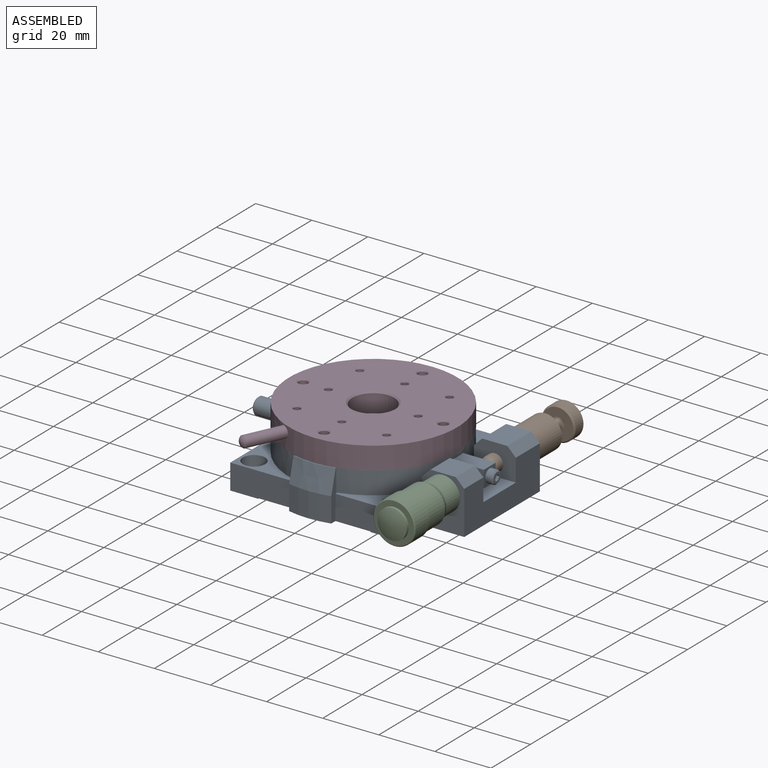
[diagram: assembled view]
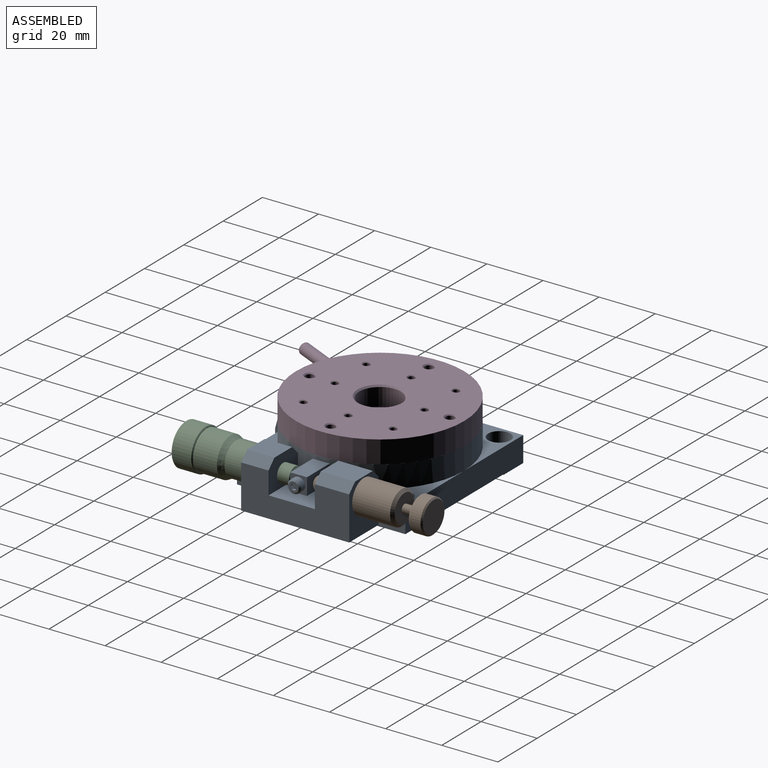
[diagram: assembled view, second angle]
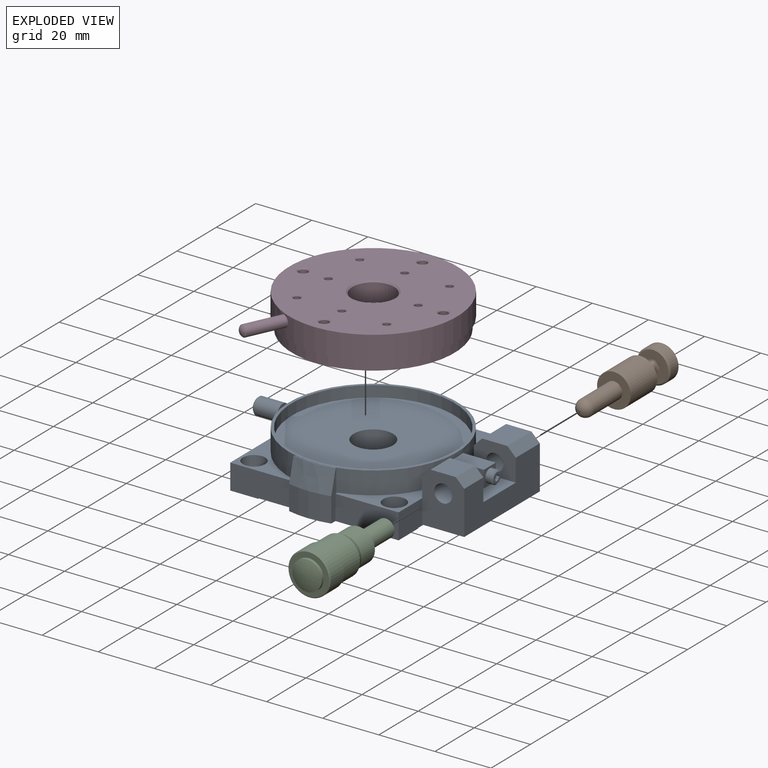
[diagram: exploded view]
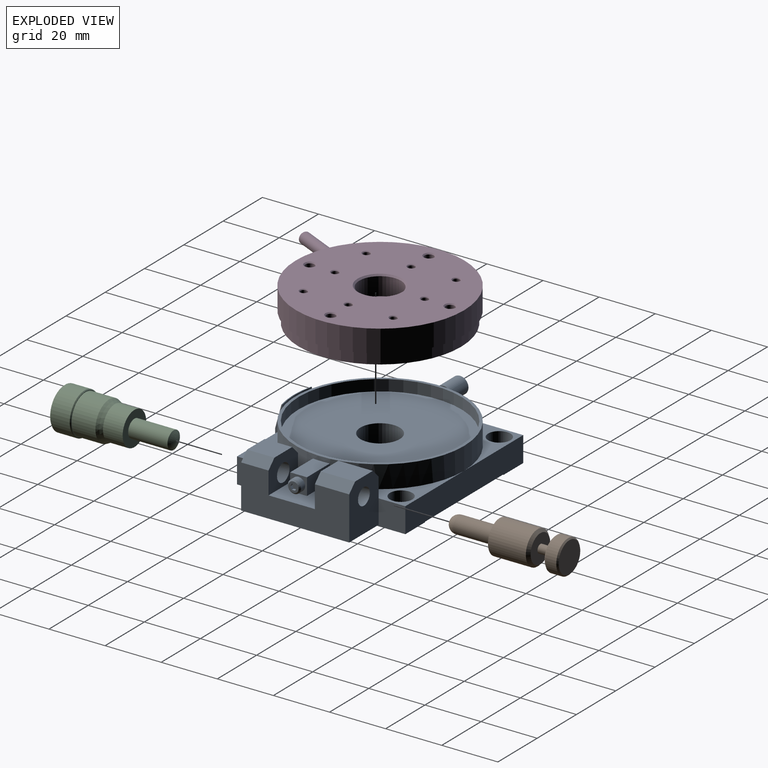
[diagram: exploded view, second angle]
ASSEMBLY  parts=4 mates=3
PART A: 93 faces, bbox 86.2x63x19 mm
  f0: cone r=33mm half-angle=15deg, axis (0,0,-1), area 128.7mm2, adj f1,f4,f91,f92
  f1: plane 15x1.24mm, normal (0,0,1), area 4.6mm2, adj f0,f2,f91,f92
  f2: cylinder r=30.5mm len=15mm, axis (0,0,1), area 121.2mm2, adj f1,f3,f91,f92
  f3: plane 15x1.45mm, normal (0,0,1), area 7.6mm2, adj f2,f63,f91,f92
  f4: cylinder r=33mm len=15mm, axis (0,0,1), area 133.2mm2, adj f0,f44,f91,f92
  f5: cylinder r=1.5mm len=3mm, axis (-1,0,0), area 11.7mm2, adj f6,f63
  f6: plane 4x4mm, normal (1,0,0), area 5.5mm2, adj f5,f7
  f7: cylinder r=2mm len=4mm, axis (-1,0,0), area 12.6mm2, adj f6,f8
  f8: plane 6x6mm, normal (1,0,0), area 15.7mm2, adj f7,f9
  f9: cylinder r=3mm len=8.5mm, axis (-1,0,0), area 160.2mm2, adj f8,f10
  f10: cone r=2.5mm half-angle=45deg, axis (1,0,0), area 12.2mm2, adj f9,f11
  f11: plane 5x5mm, normal (-1,0,0), area 19.6mm2, adj f10
  f12: plane 11.65x6mm, normal (0,0,1), area 69.3mm2, adj f14,f15,f16,f19,f63,f83,f84
  f13: plane 11.65x6mm, normal (0,0,-1), area 69.3mm2, adj f14,f15,f16,f63,f81,f82,f89
  f14: plane 11.65x6mm, normal (0,1,0), area 69.9mm2, adj f12,f13,f15,f63
  f15: plane 6x6mm, normal (1,0,0), area 18.7mm2, adj f12,f13,f14,f16,f71
  f16: plane 11.65x6mm, normal (0,-1,0), area 69.9mm2, adj f12,f13,f15,f63
  f17: cylinder r=3.17mm len=9.75mm, axis (0,-1,0), area 194.5mm2, adj f22,f23
  f18: cylinder r=3mm len=12.25mm, axis (0,1,0), area 230.9mm2, adj f20,f24
  f19: plane 2.19x0.5mm, normal (1,0,0), area 1.1mm2, adj f12,f83,f84,f85,f86
  f20: plane 15x11mm, normal (0,-1,0), area 127.7mm2, adj f18,f21,f27,f70,f87,f88,f89,f90
  f21: plane 16.5x15mm, normal (0,0,1), area 247.5mm2, adj f20,f22,f27,f89
  f22: plane 15x11mm, normal (0,1,0), area 124.3mm2, adj f17,f21,f25,f26,f27,f29,f30,f89
  f23: plane 18.5x15mm, normal (0,-1,0), area 236.8mm2, adj f17,f25,f26,f27,f28,f29,f30,f67
  f24: plane 18.5x15mm, normal (0,1,0), area 240.2mm2, adj f18,f27,f28,f67,f70,f87,f88,f90
  f25: plane 9.75x9mm, normal (0,0,1), area 87.8mm2, adj f22,f23,f26,f30
  f26: plane 9.75x3mm, normal (0.71,0,0.71), area 41.4mm2, adj f22,f23,f25,f27
  f27: plane 38.5x15.5mm, normal (1,0,0), area 464.7mm2, adj f20,f21,f22,f23,f24,f26,f28,f90
  f28: plane 38.5x15mm, normal (0,0,-1), area 577.5mm2, adj f23,f24,f27,f67
  f29: plane 9.75x7mm, normal (-1,0,0), area 68.2mm2, adj f22,f23,f30,f54
  f30: plane 9.75x3mm, normal (-0.71,0,0.71), area 41.4mm2, adj f22,f23,f25,f29
  f31: cylinder r=2.25mm len=4.5mm, axis (0,0,1), area 63.6mm2, adj f32,f68
  f32: plane 8x8mm, normal (0,0,1), area 34.4mm2, adj f31,f33
  f33: cylinder r=4mm len=8mm, axis (0,0,1), area 113.1mm2, adj f32,f58
  f34: cylinder r=2.25mm len=4.5mm, axis (0,0,1), area 63.6mm2, adj f35,f66
  f35: plane 8x8mm, normal (0,0,1), area 34.4mm2, adj f34,f36
  f36: cylinder r=4mm len=8mm, axis (0,0,1), area 113.1mm2, adj f35,f54
  f37: cylinder r=2.25mm len=4.5mm, axis (0,0,1), area 63.6mm2, adj f38,f69
  f38: plane 8x8mm, normal (0,0,1), area 34.4mm2, adj f37,f39
  f39: cylinder r=4mm len=8mm, axis (0,0,1), area 113.1mm2, adj f38,f56
  f40: cylinder r=2.25mm len=4.5mm, axis (0,0,1), area 63.6mm2, adj f41,f61
  f41: plane 8x8mm, normal (0,0,1), area 34.4mm2, adj f40,f42
  f42: cylinder r=4mm len=8mm, axis (0,0,1), area 113.1mm2, adj f41,f53
  f43: cylinder r=7mm len=14mm, axis (0,0,1), area 563mm2, adj f44,f57
  f44: plane 63x60mm, normal (0,0,-1), area 3086.8mm2, adj f4,f43,f45,f46,f47,f48,f49,f50
  f45: plane 10x0.2mm, normal (0,-1,0), area 2mm2, adj f44,f46,f59,f68
  f46: plane 10x0.2mm, normal (1,0,0), area 2mm2, adj f44,f45,f60,f68
  f47: plane 10x0.2mm, normal (-1,0,0), area 2mm2, adj f44,f48,f60,f69
  f48: plane 10x0.2mm, normal (0,-1,0), area 2mm2, adj f44,f47,f67,f69
  f49: plane 10x0.2mm, normal (0,1,0), area 2mm2, adj f44,f50,f66,f67
  f50: plane 10x0.2mm, normal (-1,0,0), area 2mm2, adj f44,f49,f62,f66
  f51: plane 10x0.2mm, normal (1,0,0), area 2mm2, adj f44,f52,f55,f61
  f52: plane 10x0.2mm, normal (0,1,0), area 2mm2, adj f44,f51,f59,f61
  f53: plane 30x22.5mm, normal (0,0,1), area 140.5mm2, adj f42,f55,f59,f63,f92
  f54: plane 28.91x22.5mm, normal (0,0,1), area 140.5mm2, adj f29,f36,f62,f63,f67,f81,f89,f91
  f55: plane 22.5x9mm, normal (0,-1,0), area 200mm2, adj f44,f51,f53,f59,f61,f92
  f56: plane 30x28.91mm, normal (0,0,1), area 142.9mm2, adj f39,f60,f63,f67,f82,f88,f89
  f57: plane 58x58mm, normal (0,0,1), area 2488.1mm2, adj f43,f65
  f58: plane 30x30mm, normal (0,0,1), area 142.9mm2, adj f33,f59,f60,f63
  f59: plane 60x9mm, normal (-1,0,0), area 532mm2, adj f44,f45,f52,f53,f55,f58,f60,f61
  f60: plane 60x9mm, normal (0,1,0), area 532mm2, adj f44,f46,f47,f56,f58,f59,f67,f68
  f61: plane 10x10mm, normal (0,0,-1), area 84.1mm2, adj f40,f51,f52,f55,f59
  f62: plane 22.5x9mm, normal (0,-1,0), area 200mm2, adj f44,f50,f54,f66,f67,f91
  f63: cylinder r=30mm len=60mm, axis (0,0,1), area 1458.9mm2, adj f3,f5,f12,f13,f14,f16,f53,f54
  f64: plane 60x60mm, normal (0,0,1), area 185.4mm2, adj f63,f65
  f65: cylinder r=29mm len=58mm, axis (0,0,1), area 728.8mm2, adj f57,f64
  f66: plane 10x10mm, normal (0,0,-1), area 84.1mm2, adj f34,f49,f50,f62,f67
  f67: plane 60x9mm, normal (1,0,0), area 204.7mm2, adj f23,f24,f28,f44,f48,f49,f54,f56
  f68: plane 10x10mm, normal (0,0,-1), area 84.1mm2, adj f31,f45,f46,f59,f60
  f69: plane 10x10mm, normal (0,0,-1), area 84.1mm2, adj f37,f47,f48,f60,f67
  f70: plane 12.25x9mm, normal (0,0,1), area 110.3mm2, adj f20,f24,f87,f90
  f71: cylinder r=2.35mm len=4.7mm, axis (-1,0,0), area 31mm2, adj f15,f72
  f72: cone r=2.35mm half-angle=45deg, axis (-1,0,0), area 9.3mm2, adj f71,f73
  f73: plane 3.7x3.7mm, normal (1,0,0), area 7.3mm2, adj f72,f74,f75,f76,f77,f78,f79
  f74: plane 1.15x1mm, normal (0,0,1), area 1.2mm2, adj f73,f75,f79,f80
  f75: plane 1x1mm, normal (0,-0.87,0.5), area 1.2mm2, adj f73,f74,f76,f80
  f76: plane 1x1mm, normal (0,-0.87,-0.5), area 1.2mm2, adj f73,f75,f77,f80
  f77: plane 1.15x1mm, normal (0,0,-1), area 1.2mm2, adj f73,f76,f78,f80
  f78: plane 1x1mm, normal (0,0.87,-0.5), area 1.2mm2, adj f73,f77,f79,f80
  f79: plane 1x1mm, normal (0,0.87,0.5), area 1.2mm2, adj f73,f74,f78,f80
  f80: plane 2.31x2mm, normal (1,0,0), area 3.5mm2, adj f74,f75,f76,f77,f78,f79
  f81: cylinder r=0.01mm len=0.5mm, axis (0,0,1), area 0mm2, adj f13,f54,f63,f89
  f82: cylinder r=0.01mm len=0.5mm, axis (0,0,1), area 0mm2, adj f13,f56,f63,f89
  f83: cylinder r=0.01mm len=0.5mm, axis (0,0,1), area 0mm2, adj f12,f19,f63,f86
  f84: cylinder r=0.01mm len=0.5mm, axis (0,0,1), area 0mm2, adj f12,f19,f63,f85
  f85: plane 1.11x0.03mm, normal (-0.71,0,0.71), area 0mm2, adj f19,f63,f84
  f86: plane 1.11x0.03mm, normal (-0.71,0,0.71), area 0mm2, adj f19,f63,f83
  f87: plane 12.25x3mm, normal (-0.71,0,0.71), area 52mm2, adj f20,f24,f70,f88
  f88: plane 12.25x7mm, normal (-1,0,0), area 85.8mm2, adj f20,f24,f56,f87
  f89: plane 16.5x1.5mm, normal (1,0,0), area 17.6mm2, adj f13,f20,f21,f22,f54,f56,f81,f82
  f90: plane 12.25x3mm, normal (0.71,0,0.71), area 52mm2, adj f20,f24,f27,f70
  f91: plane 17.02x3.11mm, normal (1,0,0), area 30.7mm2, adj f0,f1,f2,f3,f4,f44,f54,f62
  f92: plane 17.02x3.11mm, normal (-1,0,0), area 30.7mm2, adj f0,f1,f2,f3,f4,f44,f53,f55
PART B: 13 faces, bbox 42.4x12x12 mm
  f0: cone r=6mm half-angle=45deg, axis (-1,0,0), area 25.5mm2, adj f1,f12
  f1: cylinder r=6mm len=12mm, axis (-1,0,0), area 150.8mm2, adj f0,f2
  f2: cone r=5.5mm half-angle=45deg, axis (1,0,0), area 25.5mm2, adj f1,f3
  f3: plane 11x11mm, normal (-1,0,0), area 75.4mm2, adj f2,f4
  f4: torus R=2.5mm, axis (1,0,0), area 18.4mm2, adj f3,f5
  f5: cylinder r=1.5mm len=4.35mm, axis (-1,0,0), area 41mm2, adj f4,f6
  f6: plane 10x10mm, normal (1,0,0), area 71.5mm2, adj f5,f7
  f7: cone r=6mm half-angle=45deg, axis (-1,0,0), area 48.9mm2, adj f6,f8
  f8: cylinder r=6mm len=13.5mm, axis (-1,0,0), area 508.9mm2, adj f7,f9
  f9: plane 12x12mm, normal (-1,0,0), area 84.8mm2, adj f8,f10
  f10: cylinder r=3mm len=14.5mm, axis (-1,0,0), area 273.3mm2, adj f9,f11
  f11: sphere r=3mm, area 56.5mm2, adj f10
  f12: plane 11x11mm, normal (1,0,0), area 95mm2, adj f0
PART C: 13 faces, bbox 41x15x15 mm
  f0: revolved ~6.35x6.35mm, area 34.2mm2, adj f1
  f1: cylinder r=3.17mm len=14mm, axis (-1,0,0), area 279.3mm2, adj f0,f2
  f2: plane 12x12mm, normal (-1,0,0), area 81.4mm2, adj f1,f3
  f3: cylinder r=6mm len=12mm, axis (-1,0,0), area 263.9mm2, adj f2,f4
  f4: cone r=6mm half-angle=26.6deg, axis (1,0,0), area 91.3mm2, adj f3,f5
  f5: cylinder r=7mm len=14mm, axis (-1,0,0), area 373.8mm2, adj f4,f6
  f6: plane 14.4x14.4mm, normal (-1,0,0), area 8.9mm2, adj f5,f7
  f7: cone r=7.2mm half-angle=45deg, axis (1,0,0), area 19.6mm2, adj f6,f8
  f8: cylinder r=7.5mm len=15mm, axis (-1,0,0), area 325.2mm2, adj f7,f9
  f9: cone r=7.5mm half-angle=45deg, axis (-1,0,0), area 19.6mm2, adj f8,f10
  f10: plane 14.4x14.4mm, normal (1,0,0), area 76.3mm2, adj f9,f11
  f11: cylinder r=5.25mm len=10.5mm, axis (-1,0,0), area 33mm2, adj f10,f12
  f12: revolved ~10.5x5.25mm, area 0mm2, adj f11
PART D: 47 faces, bbox 60x71x12 mm
  f0: cone r=1.62mm half-angle=60deg, axis (0,0,1), area 9.5mm2, adj f44
  f1: cylinder r=2mm len=14.4mm, axis (-0.42,-0.91,0), area 176.2mm2, adj f2,f6
  f2: sphere r=2.44mm, area 16mm2, adj f1
  f3: plane 60x60mm, normal (0,0,1), area 2519.6mm2, adj f6,f7,f11,f13,f16,f19,f22,f25
  f4: plane 60x60mm, normal (0,0,-1), area 185.4mm2, adj f6,f45
  f5: cylinder r=7mm len=14mm, axis (0,0,1), area 211mm2, adj f9,f46
  f6: cylinder r=30mm len=60mm, axis (0,0,1), area 1495.4mm2, adj f1,f3,f4
  f7: cone r=1.5mm half-angle=45deg, axis (0,0,1), area 3.3mm2, adj f3,f8
  f8: cylinder r=1.23mm len=6.22mm, axis (0,0,1), area 48mm2, adj f7,f12
  f9: cone r=7.46mm half-angle=60deg, axis (0,0,1), area 24mm2, adj f5,f10
  f10: cylinder r=7.46mm len=14.92mm, axis (0,0,1), area 299.8mm2, adj f9,f11
  f11: cone r=8mm half-angle=45deg, axis (0,0,1), area 37.2mm2, adj f3,f10
  f12: cone r=1.23mm half-angle=60deg, axis (0,0,1), area 5.5mm2, adj f8
  f13: cone r=1.5mm half-angle=45deg, axis (0,0,1), area 3.3mm2, adj f3,f14
  f14: cylinder r=1.23mm len=6.22mm, axis (0,0,1), area 48mm2, adj f13,f15
  f15: cone r=1.23mm half-angle=60deg, axis (0,0,1), area 5.5mm2, adj f14
  f16: cone r=1.5mm half-angle=45deg, axis (0,0,1), area 3.3mm2, adj f3,f17
  f17: cylinder r=1.23mm len=6.22mm, axis (0,0,1), area 48mm2, adj f16,f18
  f18: cone r=1.23mm half-angle=60deg, axis (0,0,1), area 5.5mm2, adj f17
  f19: cone r=1.5mm half-angle=45deg, axis (0,0,1), area 3.3mm2, adj f3,f20
  f20: cylinder r=1.23mm len=6.22mm, axis (0,0,1), area 48mm2, adj f19,f21
  f21: cone r=1.23mm half-angle=60deg, axis (0,0,1), area 5.5mm2, adj f20
  f22: cone r=1.5mm half-angle=45deg, axis (0,0,1), area 3.3mm2, adj f3,f23
  f23: cylinder r=1.23mm len=6.22mm, axis (0,0,1), area 48mm2, adj f22,f24
  f24: cone r=1.23mm half-angle=60deg, axis (0,0,1), area 5.5mm2, adj f23
  f25: cone r=1.5mm half-angle=45deg, axis (0,0,1), area 3.3mm2, adj f3,f26
  f26: cylinder r=1.23mm len=6.22mm, axis (0,0,1), area 48mm2, adj f25,f27
  f27: cone r=1.23mm half-angle=60deg, axis (0,0,1), area 5.5mm2, adj f26
  f28: cone r=1.5mm half-angle=45deg, axis (0,0,1), area 3.3mm2, adj f3,f29
  f29: cylinder r=1.23mm len=6.22mm, axis (0,0,1), area 48mm2, adj f28,f30
  f30: cone r=1.23mm half-angle=60deg, axis (0,0,1), area 5.5mm2, adj f29
  f31: cone r=1.5mm half-angle=45deg, axis (0,0,1), area 3.3mm2, adj f3,f32
  f32: cylinder r=1.23mm len=6.22mm, axis (0,0,1), area 48mm2, adj f31,f33
  f33: cone r=1.23mm half-angle=60deg, axis (0,0,1), area 5.5mm2, adj f32
  f34: cone r=2mm half-angle=45deg, axis (0,0,1), area 6.1mm2, adj f3,f35
  f35: cylinder r=1.62mm len=6.49mm, axis (0,0,1), area 66.1mm2, adj f34,f36
  f36: cone r=1.62mm half-angle=60deg, axis (0,0,1), area 9.5mm2, adj f35
  f37: cone r=2mm half-angle=45deg, axis (0,0,1), area 6.1mm2, adj f3,f38
  f38: cylinder r=1.62mm len=6.49mm, axis (0,0,1), area 66.1mm2, adj f37,f39
  f39: cone r=1.62mm half-angle=60deg, axis (0,0,1), area 9.5mm2, adj f38
  f40: cone r=2mm half-angle=45deg, axis (0,0,1), area 6.1mm2, adj f3,f41
  f41: cylinder r=1.62mm len=6.49mm, axis (0,0,1), area 66.1mm2, adj f40,f42
  f42: cone r=1.62mm half-angle=60deg, axis (0,0,1), area 9.5mm2, adj f41
  f43: cone r=2mm half-angle=45deg, axis (0,0,1), area 6.1mm2, adj f3,f44
  f44: cylinder r=1.62mm len=6.49mm, axis (0,0,1), area 66.1mm2, adj f0,f43
  f45: cylinder r=29mm len=58mm, axis (0,0,1), area 728.8mm2, adj f4,f46
  f46: plane 58x58mm, normal (0,0,-1), area 2488.1mm2, adj f5,f45
PLACE A at identity
PLACE B rot(axis=(0.71,0.71,0),180deg) t=(37.5,3,12.5)mm
PLACE C rot(axis=(0,0,-1),90deg) t=(37.5,-3,12.5)mm
PLACE D t=(0,0,17)mm
MATE fastened C.f1 <-> A.f17  axis (0,1,0) through (37.5,-18,12.5)mm
MATE fastened D.f5 <-> A.f0  axis (0,0,-1) through (0,0,13)mm
MATE fastened A.f17 <-> B.f0  axis (0,1,0) through (37.5,20.5,12.5)mm
